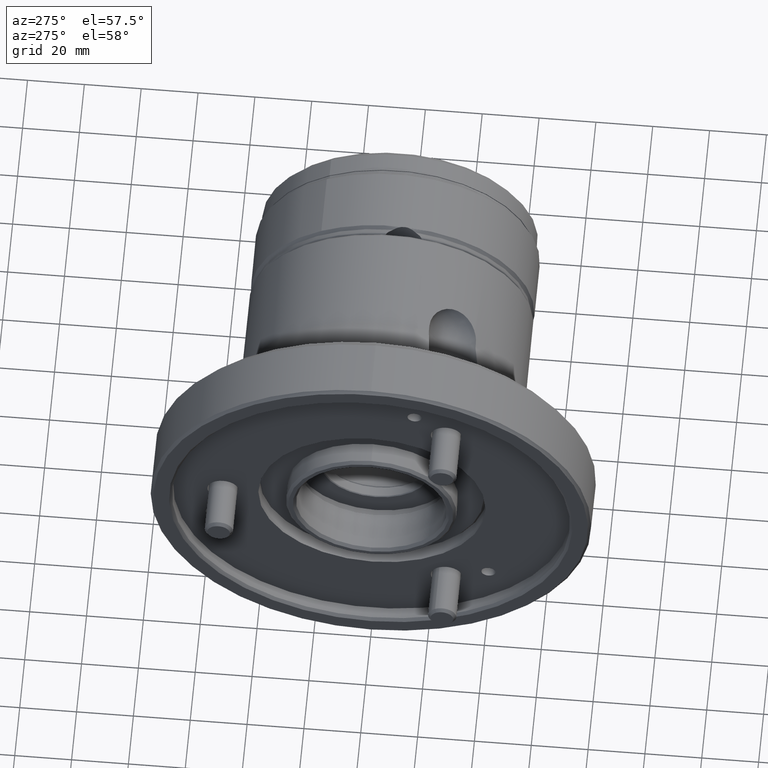
[diagram: clean part render]
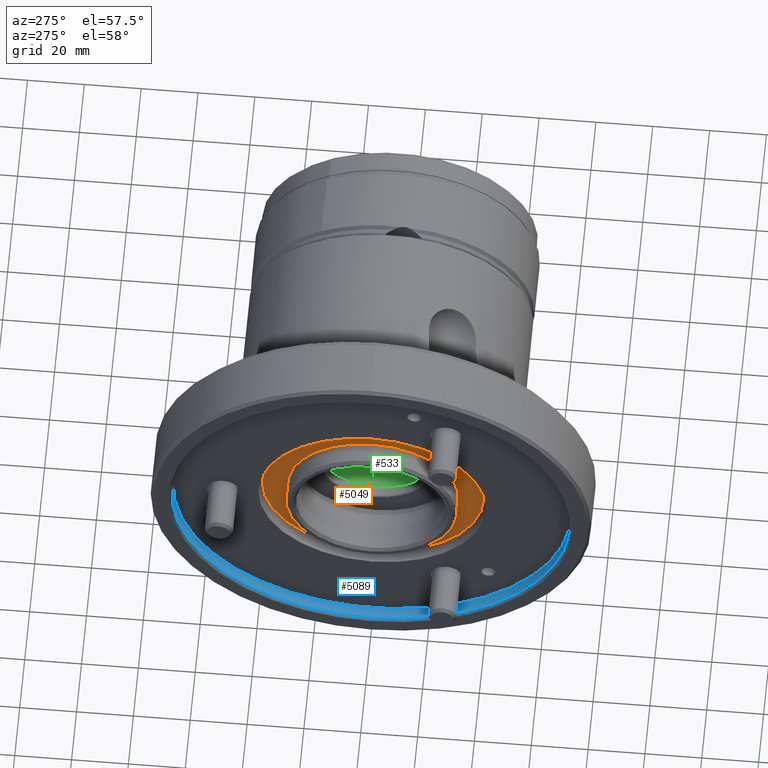
[diagram: same view with three faces highlighted in distinct colors, each labeled with its STEP entity id]
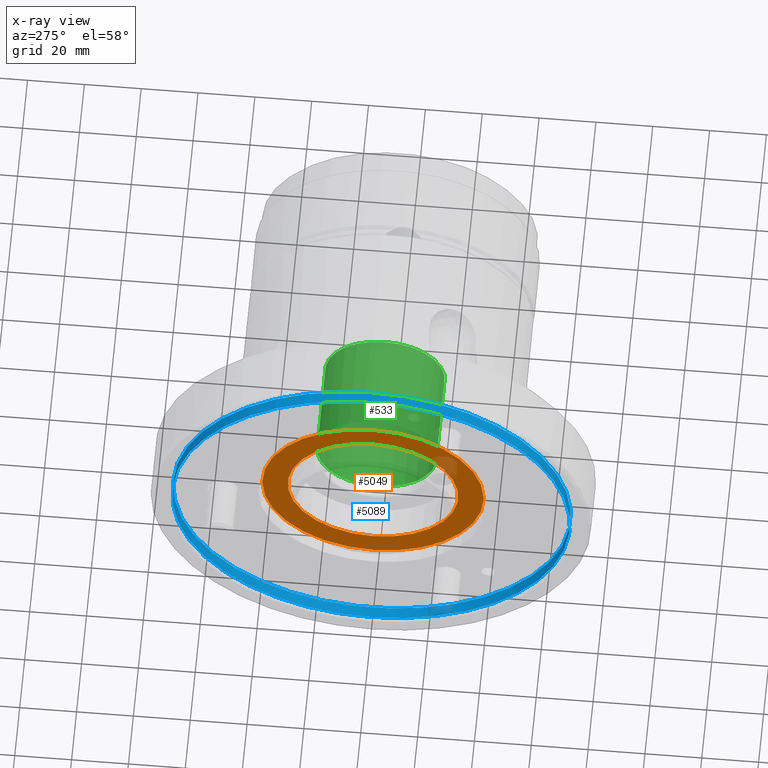
[diagram: x-ray of the same camera — body ghosted, the three highlighted faces saturated]
A machine part, auxiliary view with three faces highlighted in distinct colors.
The next image is the same camera in x-ray (body ghosted, the three faces saturated) — at least one of them is partly hidden behind the body in this view.
Their STEP definitions:

[orange] entity #5049 — the highlighted planar face has unit normal (1, 0, 0).
#279 = FACE_BOUND ( 'NONE', #3650, .T. ) ;
#418 = CIRCLE ( 'NONE', #4108, 30.00000000000000000 ) ;
#607 = EDGE_CURVE ( 'NONE', #5143, #5143, #418, .T. ) ;
#667 = CARTESIAN_POINT ( 'NONE',  ( 8.000000000000000000, 0.0000000000000000000, 30.00000000000000000 ) ) ;
#925 = VERTEX_POINT ( 'NONE', #3089 ) ;
#1252 = AXIS2_PLACEMENT_3D ( 'NONE', #2362, #4335, #6091 ) ;
#1752 = DIRECTION ( 'NONE',  ( 0.0000000000000000000, 0.0000000000000000000, -1.000000000000000000 ) ) ;
#2111 = ORIENTED_EDGE ( 'NONE', *, *, #4877, .T. ) ;
#2165 = CIRCLE ( 'NONE', #1252, 39.00000000000002132 ) ;
#2201 = ORIENTED_EDGE ( 'NONE', *, *, #607, .F. ) ;
#2313 = PLANE ( 'NONE',  #3561 ) ;
#2362 = CARTESIAN_POINT ( 'NONE',  ( 8.000000000000000000, 0.0000000000000000000, 0.0000000000000000000 ) ) ;
#3089 = CARTESIAN_POINT ( 'NONE',  ( 8.000000000000000000, 0.0000000000000000000, -39.00000000000002132 ) ) ;
#3492 = EDGE_LOOP ( 'NONE', ( #2111 ) ) ;
#3561 = AXIS2_PLACEMENT_3D ( 'NONE', #4286, #6043, #1752 ) ;
#3650 = EDGE_LOOP ( 'NONE', ( #2201 ) ) ;
#3829 = DIRECTION ( 'NONE',  ( -1.000000000000000000, -0.0000000000000000000, -0.0000000000000000000 ) ) ;
#3839 = DIRECTION ( 'NONE',  ( 0.0000000000000000000, 0.0000000000000000000, 1.000000000000000000 ) ) ;
#3876 = CARTESIAN_POINT ( 'NONE',  ( 8.000000000000000000, 0.0000000000000000000, 0.0000000000000000000 ) ) ;
#4108 = AXIS2_PLACEMENT_3D ( 'NONE', #3876, #3829, #3839 ) ;
#4286 = CARTESIAN_POINT ( 'NONE',  ( 8.000000000000000000, 30.00000000000000000, 0.0000000000000000000 ) ) ;
#4335 = DIRECTION ( 'NONE',  ( -1.000000000000000000, -0.0000000000000000000, -0.0000000000000000000 ) ) ;
#4751 = FACE_OUTER_BOUND ( 'NONE', #3492, .T. ) ;
#4877 = EDGE_CURVE ( 'NONE', #925, #925, #2165, .T. ) ;
#5049 = ADVANCED_FACE ( 'NONE', ( #4751, #279 ), #2313, .F. ) ;
#5143 = VERTEX_POINT ( 'NONE', #667 ) ;
#6043 = DIRECTION ( 'NONE',  ( 1.000000000000000000, 0.0000000000000000000, 0.0000000000000000000 ) ) ;
#6091 = DIRECTION ( 'NONE',  ( 0.0000000000000000000, 0.0000000000000000000, -1.000000000000000000 ) ) ;

[blue] entity #5089 — the highlighted cylindrical surface (bore or boss wall) has radius 70 mm, axis along (-1, -0, -0).
#131 = DIRECTION ( 'NONE',  ( -1.000000000000000000, -0.0000000000000000000, -0.0000000000000000000 ) ) ;
#172 = AXIS2_PLACEMENT_3D ( 'NONE', #4593, #131, #2112 ) ;
#373 = DIRECTION ( 'NONE',  ( 0.0000000000000000000, 0.0000000000000000000, 1.000000000000000000 ) ) ;
#432 = EDGE_LOOP ( 'NONE', ( #3069 ) ) ;
#550 = CARTESIAN_POINT ( 'NONE',  ( 1.000000000000000222, 0.0000000000000000000, -70.00000000000000000 ) ) ;
#811 = CYLINDRICAL_SURFACE ( 'NONE', #4846, 70.00000000000000000 ) ;
#1708 = DIRECTION ( 'NONE',  ( -1.000000000000000000, 0.0000000000000000000, 0.0000000000000000000 ) ) ;
#1918 = CIRCLE ( 'NONE', #4731, 70.00000000000000000 ) ;
#1946 = CARTESIAN_POINT ( 'NONE',  ( 5.000000000000000888, 0.0000000000000000000, 70.00000000000000000 ) ) ;
#2112 = DIRECTION ( 'NONE',  ( 0.0000000000000000000, 0.0000000000000000000, 1.000000000000000000 ) ) ;
#2971 = CARTESIAN_POINT ( 'NONE',  ( 0.0000000000000000000, 0.0000000000000000000, 0.0000000000000000000 ) ) ;
#3069 = ORIENTED_EDGE ( 'NONE', *, *, #5488, .T. ) ;
#3101 = ORIENTED_EDGE ( 'NONE', *, *, #4357, .F. ) ;
#3425 = FACE_OUTER_BOUND ( 'NONE', #432, .T. ) ;
#3748 = CIRCLE ( 'NONE', #172, 70.00000000000000000 ) ;
#3780 = DIRECTION ( 'NONE',  ( 0.0000000000000000000, 0.0000000000000000000, -1.000000000000000000 ) ) ;
#4357 = EDGE_CURVE ( 'NONE', #6190, #6190, #3748, .T. ) ;
#4593 = CARTESIAN_POINT ( 'NONE',  ( 5.000000000000000888, 0.0000000000000000000, 0.0000000000000000000 ) ) ;
#4731 = AXIS2_PLACEMENT_3D ( 'NONE', #6017, #1708, #3780 ) ;
#4841 = DIRECTION ( 'NONE',  ( -1.000000000000000000, -0.0000000000000000000, -0.0000000000000000000 ) ) ;
#4846 = AXIS2_PLACEMENT_3D ( 'NONE', #2971, #4841, #373 ) ;
#5013 = VERTEX_POINT ( 'NONE', #550 ) ;
#5089 = ADVANCED_FACE ( 'NONE', ( #3425, #5285 ), #811, .F. ) ;
#5285 = FACE_OUTER_BOUND ( 'NONE', #5741, .T. ) ;
#5488 = EDGE_CURVE ( 'NONE', #5013, #5013, #1918, .T. ) ;
#5741 = EDGE_LOOP ( 'NONE', ( #3101 ) ) ;
#6017 = CARTESIAN_POINT ( 'NONE',  ( 1.000000000000000222, 0.0000000000000000000, 0.0000000000000000000 ) ) ;
#6190 = VERTEX_POINT ( 'NONE', #1946 ) ;

[green] entity #533 — the highlighted cylindrical surface (bore or boss wall) has radius 21 mm, axis along (-1, -0, -0).
#366 = EDGE_CURVE ( 'NONE', #642, #642, #4987, .T. ) ;
#449 = CARTESIAN_POINT ( 'NONE',  ( 4.000000000000025757, 0.0000000000000000000, 0.0000000000000000000 ) ) ;
#463 = ORIENTED_EDGE ( 'NONE', *, *, #366, .F. ) ;
#515 = ORIENTED_EDGE ( 'NONE', *, *, #5662, .T. ) ;
#533 = ADVANCED_FACE ( 'NONE', ( #5026, #5034 ), #5041, .F. ) ;
#642 = VERTEX_POINT ( 'NONE', #2750 ) ;
#1121 = AXIS2_PLACEMENT_3D ( 'NONE', #449, #2516, #4465 ) ;
#2516 = DIRECTION ( 'NONE',  ( -1.000000000000000000, 0.0000000000000000000, 0.0000000000000000000 ) ) ;
#2750 = CARTESIAN_POINT ( 'NONE',  ( 37.29999999999999716, 0.0000000000000000000, 21.00000000000000000 ) ) ;
#3032 = EDGE_LOOP ( 'NONE', ( #463 ) ) ;
#3562 = EDGE_LOOP ( 'NONE', ( #515 ) ) ;
#4090 = VERTEX_POINT ( 'NONE', #5873 ) ;
#4204 = AXIS2_PLACEMENT_3D ( 'NONE', #4506, #4538, #4544 ) ;
#4413 = AXIS2_PLACEMENT_3D ( 'NONE', #5092, #5107, #5048 ) ;
#4465 = DIRECTION ( 'NONE',  ( 0.0000000000000000000, 0.0000000000000000000, -1.000000000000000000 ) ) ;
#4506 = CARTESIAN_POINT ( 'NONE',  ( 37.29999999999999716, 0.0000000000000000000, 0.0000000000000000000 ) ) ;
#4538 = DIRECTION ( 'NONE',  ( -1.000000000000000000, -0.0000000000000000000, -0.0000000000000000000 ) ) ;
#4544 = DIRECTION ( 'NONE',  ( 0.0000000000000000000, 0.0000000000000000000, 1.000000000000000000 ) ) ;
#4836 = CIRCLE ( 'NONE', #1121, 21.00000000000000000 ) ;
#4987 = CIRCLE ( 'NONE', #4204, 21.00000000000000000 ) ;
#5026 = FACE_OUTER_BOUND ( 'NONE', #3562, .T. ) ;
#5034 = FACE_OUTER_BOUND ( 'NONE', #3032, .T. ) ;
#5041 = CYLINDRICAL_SURFACE ( 'NONE', #4413, 21.00000000000000000 ) ;
#5048 = DIRECTION ( 'NONE',  ( 0.0000000000000000000, 0.0000000000000000000, 1.000000000000000000 ) ) ;
#5092 = CARTESIAN_POINT ( 'NONE',  ( 0.0000000000000000000, 0.0000000000000000000, 0.0000000000000000000 ) ) ;
#5107 = DIRECTION ( 'NONE',  ( -1.000000000000000000, -0.0000000000000000000, -0.0000000000000000000 ) ) ;
#5662 = EDGE_CURVE ( 'NONE', #4090, #4090, #4836, .T. ) ;
#5873 = CARTESIAN_POINT ( 'NONE',  ( 4.000000000000025757, 0.0000000000000000000, -21.00000000000000000 ) ) ;